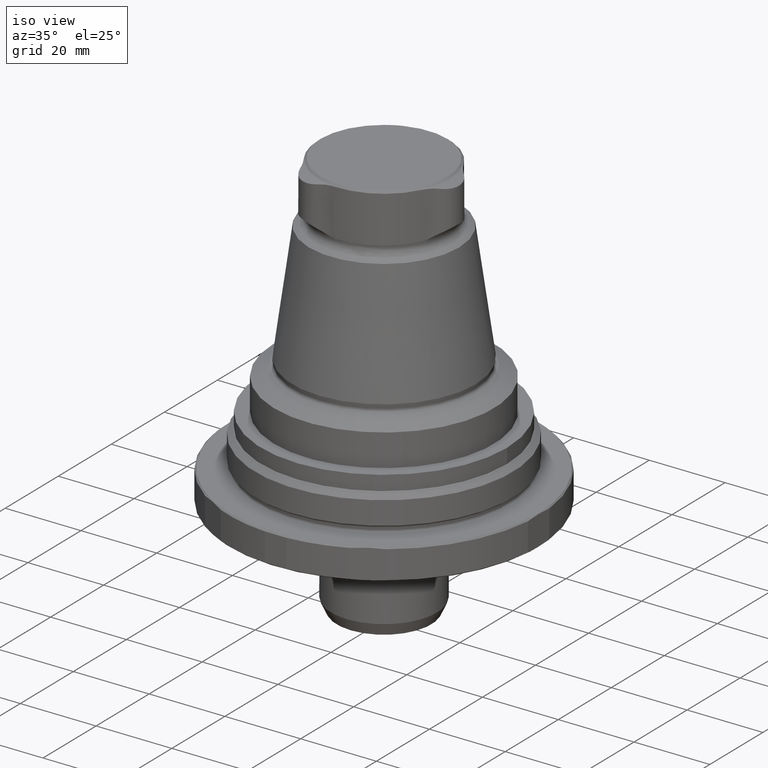
[diagram: clean part render]
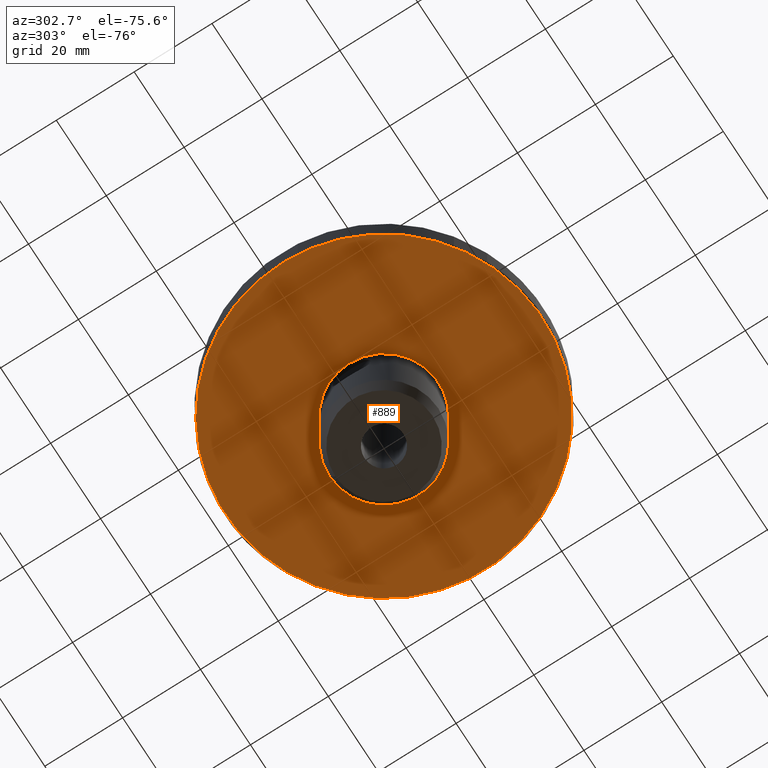
[diagram: tour spotlight — one face highlighted and labeled with its STEP entity id]
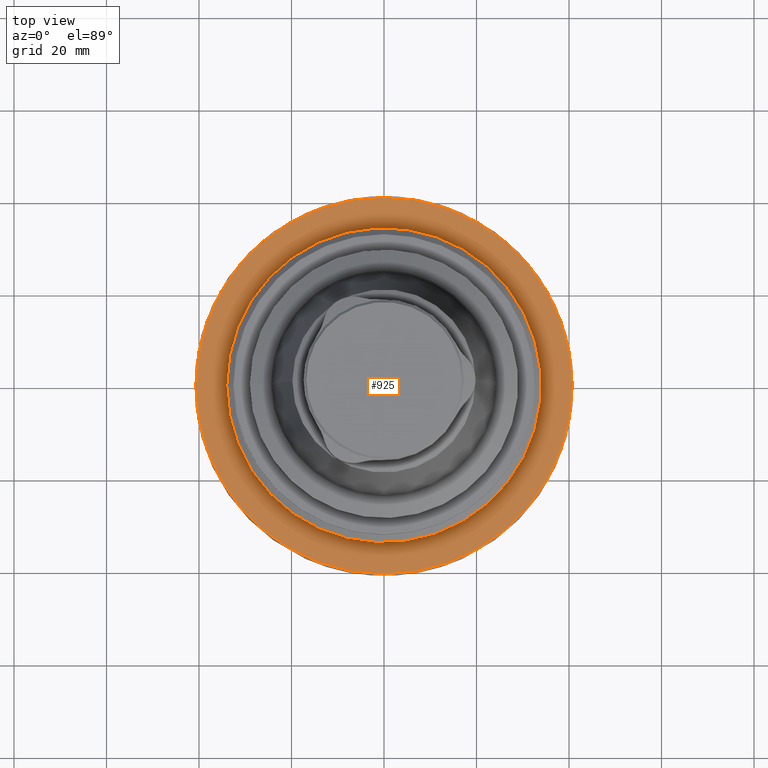
[diagram: tour spotlight — one face highlighted and labeled with its STEP entity id]
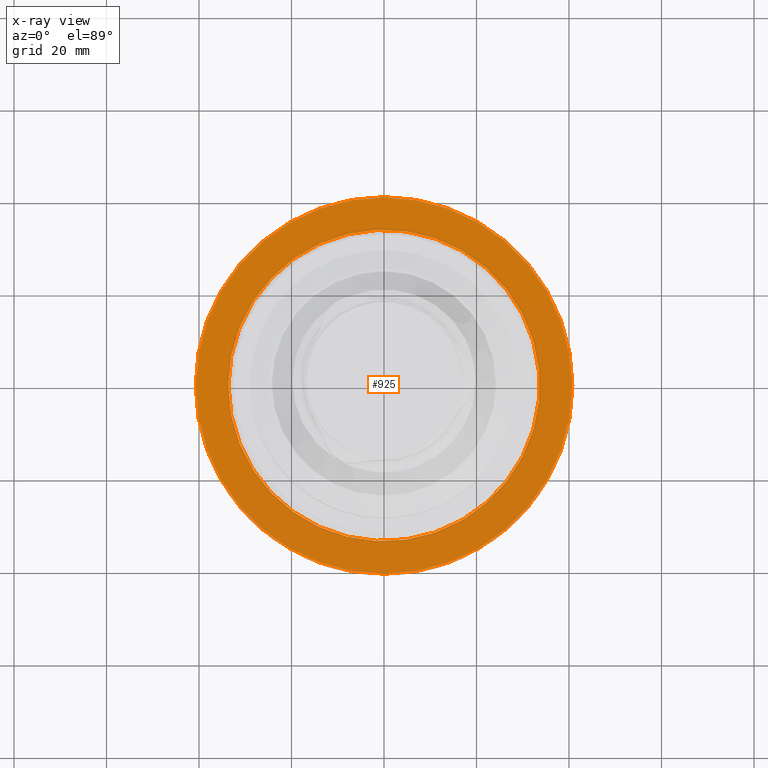
[diagram: x-ray of the same camera — body ghosted, this tour face saturated]
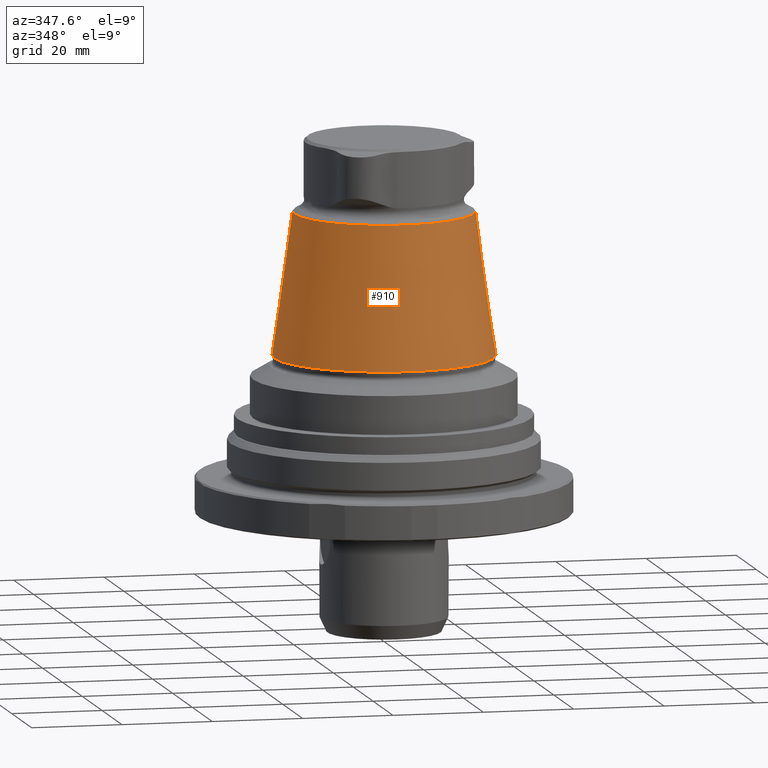
[diagram: tour spotlight — one face highlighted and labeled with its STEP entity id]
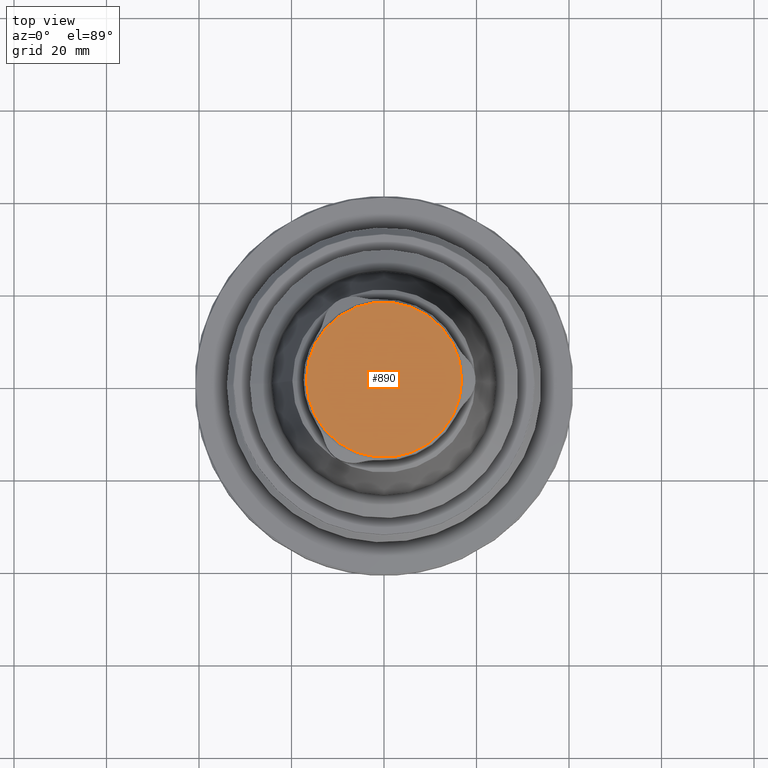
[diagram: tour spotlight — one face highlighted and labeled with its STEP entity id]
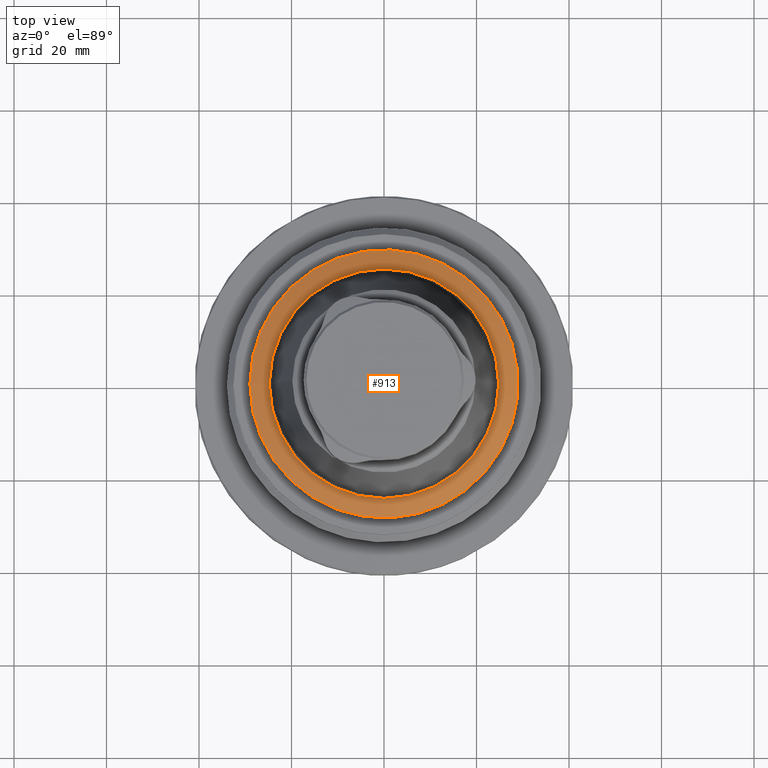
[diagram: tour spotlight — one face highlighted and labeled with its STEP entity id]
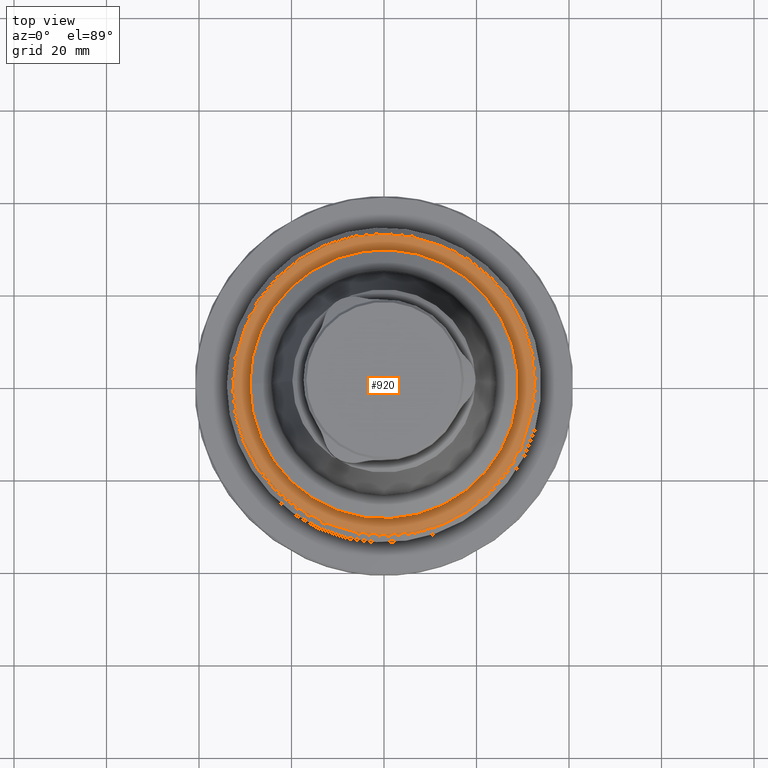
[diagram: tour spotlight — one face highlighted and labeled with its STEP entity id]
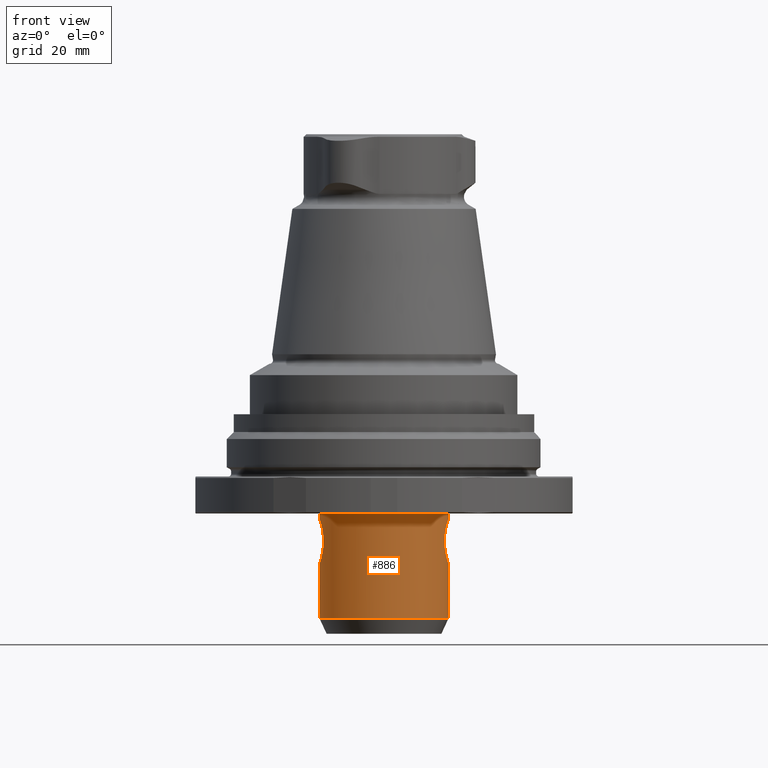
[diagram: tour spotlight — one face highlighted and labeled with its STEP entity id]
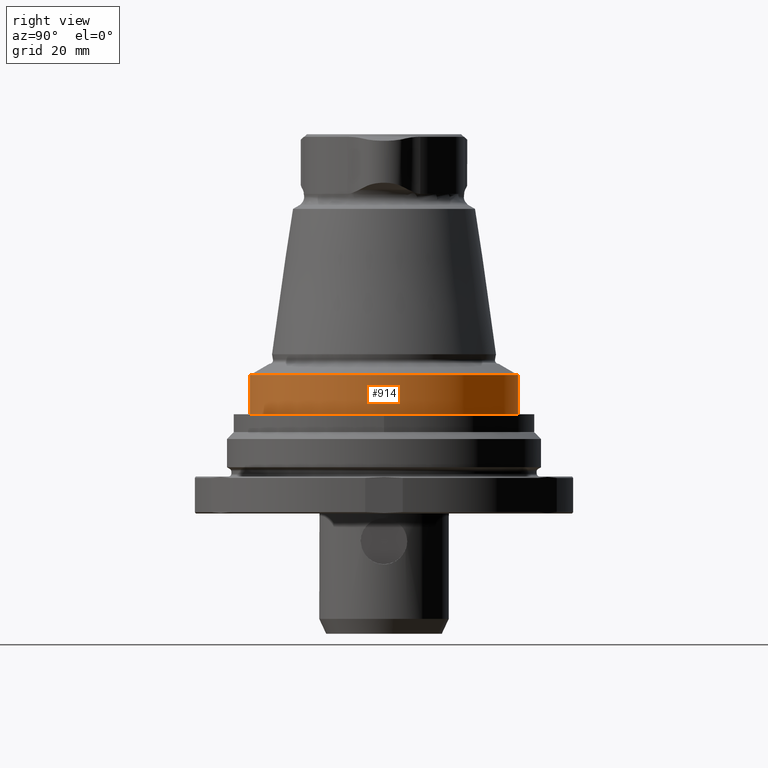
[diagram: tour spotlight — one face highlighted and labeled with its STEP entity id]
A machine part: a face-by-face anatomy tour. The part has 64 B-rep faces; the first image is the clean iso view, then the 8 largest visible faces are spotlighted one at a time (largest first), each with its STEP entity span.

Face 1 — auxiliary view, entity #889. In plain terms, the highlighted planar face has unit normal (0, -0, -1).
Definition (entity closure, byte-faithful):
#96=PLANE('',#970);
#112=CIRCLE('',#964,14.);
#116=CIRCLE('',#971,40.7);
#173=ORIENTED_EDGE('',*,*,#412,.F.);
#174=ORIENTED_EDGE('',*,*,#417,.T.);
#412=EDGE_CURVE('',#535,#535,#112,.T.);
#417=EDGE_CURVE('',#540,#540,#116,.T.);
#535=VERTEX_POINT('',#1367);
#540=VERTEX_POINT('',#1398);
#676=EDGE_LOOP('',(#173));
#677=EDGE_LOOP('',(#174));
#771=FACE_BOUND('',#676,.T.);
#772=FACE_BOUND('',#677,.T.);
#889=ADVANCED_FACE('',(#771,#772),#96,.T.);
#964=AXIS2_PLACEMENT_3D('',#1366,#1084,#1085);
#970=AXIS2_PLACEMENT_3D('',#1396,#1096,#1097);
#971=AXIS2_PLACEMENT_3D('',#1397,#1098,#1099);
#1084=DIRECTION('',(1.22461692971323E-16,-7.49836836562635E-33,-1.));
#1085=DIRECTION('',(-1.,0.,-1.22461692971323E-16));
#1096=DIRECTION('',(1.22461692971323E-16,-7.49836836562635E-33,-1.));
#1097=DIRECTION('',(-1.,6.12303176911189E-17,-1.22461692971323E-16));
#1098=DIRECTION('',(-7.30126435159279E-33,-9.52839055771651E-18,-1.));
#1099=DIRECTION('',(-1.,-8.32667268468868E-17,2.89465139560709E-33));
#1366=CARTESIAN_POINT('',(0.,0.,-9.));
#1367=CARTESIAN_POINT('',(-14.,0.,-9.));
#1396=CARTESIAN_POINT('',(-30.5,1.86752468957913E-15,-9.00000000000001));
#1397=CARTESIAN_POINT('',(7.88665112559661E-15,-1.67699673815811E-16,-9.00000000000001));
#1398=CARTESIAN_POINT('',(-40.7,-3.5566554564841E-15,-9.00000000000001));

Face 2 — top view, entity #925. An x-ray twin of the same camera follows (body ghosted, this face saturated) — the face is partly hidden behind the body. In plain terms, the highlighted planar face has unit normal (-0, -0, -1).
Definition (entity closure, byte-faithful):
#100=PLANE('',#1035);
#144=CIRCLE('',#1034,33.65);
#145=CIRCLE('',#1036,40.7);
#302=ORIENTED_EDGE('',*,*,#481,.T.);
#303=ORIENTED_EDGE('',*,*,#482,.F.);
#481=EDGE_CURVE('',#589,#589,#144,.T.);
#482=EDGE_CURVE('',#590,#590,#145,.T.);
#589=VERTEX_POINT('',#1642);
#590=VERTEX_POINT('',#1645);
#732=EDGE_LOOP('',(#302));
#733=EDGE_LOOP('',(#303));
#827=FACE_BOUND('',#732,.T.);
#828=FACE_BOUND('',#733,.T.);
#925=ADVANCED_FACE('',(#827,#828),#100,.F.);
#1034=AXIS2_PLACEMENT_3D('',#1641,#1236,#1237);
#1035=AXIS2_PLACEMENT_3D('',#1643,#1238,#1239);
#1036=AXIS2_PLACEMENT_3D('',#1644,#1240,#1241);
#1236=DIRECTION('',(-7.30126435159279E-33,-9.52839055771651E-18,-1.));
#1237=DIRECTION('',(-1.,-8.32667268468868E-17,2.89465139560709E-33));
#1238=DIRECTION('',(-7.30126435159279E-33,-9.52839055771651E-18,-1.));
#1239=DIRECTION('',(-1.,-8.32667268468868E-17,2.89465139560709E-33));
#1240=DIRECTION('',(-7.30126435159279E-33,-9.52839055771651E-18,-1.));
#1241=DIRECTION('',(-1.,-8.32667268468868E-17,2.89465139560709E-33));
#1641=CARTESIAN_POINT('',(7.88665112559661E-15,-9.1472549354079E-17,-1.00000000000001));
#1642=CARTESIAN_POINT('',(-33.65,-2.89339790775182E-15,-1.00000000000001));
#1643=CARTESIAN_POINT('',(-33.65,-2.89339790775182E-15,-1.00000000000001));
#1644=CARTESIAN_POINT('',(7.88665112559661E-15,-9.1472549354079E-17,-1.00000000000001));
#1645=CARTESIAN_POINT('',(-40.7,-3.48042833202237E-15,-1.00000000000001));

Face 3 — auxiliary view, entity #910. In plain terms, the highlighted conical surface has half-angle 7.95 deg.
Definition (entity closure, byte-faithful):
#88=CONICAL_SURFACE('',#1005,24.2110659529869,0.138753675533549);
#129=CIRCLE('',#1004,19.820622068747);
#130=CIRCLE('',#1006,24.2110659529869);
#272=ORIENTED_EDGE('',*,*,#466,.T.);
#273=ORIENTED_EDGE('',*,*,#467,.F.);
#466=EDGE_CURVE('',#574,#574,#129,.T.);
#467=EDGE_CURVE('',#575,#575,#130,.T.);
#574=VERTEX_POINT('',#1597);
#575=VERTEX_POINT('',#1600);
#702=EDGE_LOOP('',(#272));
#703=EDGE_LOOP('',(#273));
#797=FACE_BOUND('',#702,.T.);
#798=FACE_BOUND('',#703,.T.);
#910=ADVANCED_FACE('',(#797,#798),#88,.T.);
#1004=AXIS2_PLACEMENT_3D('',#1596,#1176,#1177);
#1005=AXIS2_PLACEMENT_3D('',#1598,#1178,#1179);
#1006=AXIS2_PLACEMENT_3D('',#1599,#1180,#1181);
#1176=DIRECTION('',(1.22461692971323E-16,-7.49836836562635E-33,-1.));
#1177=DIRECTION('',(-1.,6.12303176911189E-17,-1.22461692971323E-16));
#1178=DIRECTION('',(1.22461692971323E-16,-7.49836836562635E-33,-1.));
#1179=DIRECTION('',(-1.,6.12303176911189E-17,-1.22461692971323E-16));
#1180=DIRECTION('',(1.22461692971323E-16,-7.49836836562635E-33,-1.));
#1181=DIRECTION('',(-1.,6.12303176911189E-17,-1.22461692971323E-16));
#1596=CARTESIAN_POINT('',(1.97634923270405E-15,-1.21012491387068E-31,56.8624545642742));
#1597=CARTESIAN_POINT('',(-19.820622068747,1.21362298610498E-15,56.8624545642742));
#1598=CARTESIAN_POINT('',(5.82638272995627E-15,-3.56751265545271E-31,25.4237784865737));
#1599=CARTESIAN_POINT('',(5.82638272995627E-15,-3.56751265545271E-31,25.4237784865737));
#1600=CARTESIAN_POINT('',(-24.2110659529869,1.48245125994202E-15,25.4237784865737));

Face 4 — top view, entity #890. In plain terms, the highlighted planar face has unit normal (-0, 0, 1).
Definition (entity closure, byte-faithful):
#97=PLANE('',#972);
#117=CIRCLE('',#973,16.78);
#175=ORIENTED_EDGE('',*,*,#418,.F.);
#418=EDGE_CURVE('',#541,#541,#117,.T.);
#541=VERTEX_POINT('',#1401);
#678=EDGE_LOOP('',(#175));
#773=FACE_BOUND('',#678,.T.);
#890=ADVANCED_FACE('',(#773),#97,.T.);
#972=AXIS2_PLACEMENT_3D('',#1399,#1100,#1101);
#973=AXIS2_PLACEMENT_3D('',#1400,#1102,#1103);
#1100=DIRECTION('',(-1.22461692971323E-16,7.49836836562635E-33,1.));
#1101=DIRECTION('',(1.,-6.12303176911189E-17,1.22461692971323E-16));
#1102=DIRECTION('',(1.22461692971323E-16,-7.49836836562635E-33,-1.));
#1103=DIRECTION('',(-1.,6.12303176911189E-17,-1.22461692971323E-16));
#1399=CARTESIAN_POINT('',(-16.78,1.02744473085697E-15,73.));
#1400=CARTESIAN_POINT('',(1.18098243419732E-19,-7.23119296335328E-36,73.));
#1401=CARTESIAN_POINT('',(-16.78,1.02744473085697E-15,73.));

Face 5 — top view, entity #913. In plain terms, the highlighted conical surface has half-angle 60 deg.
Definition (entity closure, byte-faithful):
#90=CONICAL_SURFACE('',#1011,29.,1.0471975511966);
#132=CIRCLE('',#1010,24.8);
#133=CIRCLE('',#1012,29.);
#278=ORIENTED_EDGE('',*,*,#469,.T.);
#279=ORIENTED_EDGE('',*,*,#470,.F.);
#469=EDGE_CURVE('',#577,#577,#132,.T.);
#470=EDGE_CURVE('',#578,#578,#133,.T.);
#577=VERTEX_POINT('',#1606);
#578=VERTEX_POINT('',#1609);
#708=EDGE_LOOP('',(#278));
#709=EDGE_LOOP('',(#279));
#803=FACE_BOUND('',#708,.T.);
#804=FACE_BOUND('',#709,.T.);
#913=ADVANCED_FACE('',(#803,#804),#90,.T.);
#1010=AXIS2_PLACEMENT_3D('',#1605,#1188,#1189);
#1011=AXIS2_PLACEMENT_3D('',#1607,#1190,#1191);
#1012=AXIS2_PLACEMENT_3D('',#1608,#1192,#1193);
#1188=DIRECTION('',(1.22461692971323E-16,-7.49836836562635E-33,-1.));
#1189=DIRECTION('',(-1.,6.12303176911189E-17,-1.22461692971323E-16));
#1190=DIRECTION('',(1.22461692971323E-16,-7.49836836562635E-33,-1.));
#1191=DIRECTION('',(-1.,6.12303176911189E-17,-1.22461692971323E-16));
#1192=DIRECTION('',(1.22461692971323E-16,-7.49836836562635E-33,-1.));
#1193=DIRECTION('',(-1.,6.12303176911189E-17,-1.22461692971323E-16));
#1605=CARTESIAN_POINT('',(6.07951171463002E-15,-3.72250433693675E-31,23.3567730538379));
#1606=CARTESIAN_POINT('',(-24.8,1.51851187873975E-15,23.3567730538379));
#1607=CARTESIAN_POINT('',(6.37646553852014E-15,-3.9043301067006E-31,20.9319019232415));
#1608=CARTESIAN_POINT('',(6.37646553852014E-15,-3.9043301067006E-31,20.9319019232415));
#1609=CARTESIAN_POINT('',(-29.,1.77567921304245E-15,20.9319019232415));

Face 6 — top view, entity #920. In plain terms, the highlighted planar face has unit normal (0, -0, 1).
Definition (entity closure, byte-faithful):
#98=PLANE('',#1026);
#134=CIRCLE('',#1014,29.);
#141=CIRCLE('',#1027,32.48);
#292=ORIENTED_EDGE('',*,*,#478,.F.);
#293=ORIENTED_EDGE('',*,*,#471,.T.);
#471=EDGE_CURVE('',#579,#579,#134,.T.);
#478=EDGE_CURVE('',#586,#586,#141,.T.);
#579=VERTEX_POINT('',#1612);
#586=VERTEX_POINT('',#1632);
#722=EDGE_LOOP('',(#292));
#723=EDGE_LOOP('',(#293));
#817=FACE_BOUND('',#722,.T.);
#818=FACE_BOUND('',#723,.T.);
#920=ADVANCED_FACE('',(#817,#818),#98,.T.);
#1014=AXIS2_PLACEMENT_3D('',#1611,#1196,#1197);
#1026=AXIS2_PLACEMENT_3D('',#1630,#1220,#1221);
#1027=AXIS2_PLACEMENT_3D('',#1631,#1222,#1223);
#1196=DIRECTION('',(1.22461692971323E-16,-7.49836836562635E-33,-1.));
#1197=DIRECTION('',(-1.,6.12303176911189E-17,-1.22461692971323E-16));
#1220=DIRECTION('',(5.2112629750951E-18,-6.90472121537616E-17,1.));
#1221=DIRECTION('',(2.8327492261615E-16,1.,6.90472121537612E-17));
#1222=DIRECTION('',(-5.2112629750951E-18,6.90472121537616E-17,-1.));
#1223=DIRECTION('',(-1.,6.12303176911188E-17,1.08491142720197E-17));
#1611=CARTESIAN_POINT('',(7.4139489907273E-15,-4.53958452047983E-31,12.46));
#1612=CARTESIAN_POINT('',(-29.,1.77567921304245E-15,12.46));
#1630=CARTESIAN_POINT('',(7.41400110335705E-15,-9.52360330964904E-18,12.46));
#1631=CARTESIAN_POINT('',(7.41400110335705E-15,-9.52360330964904E-18,12.46));
#1632=CARTESIAN_POINT('',(-32.48,1.97923711529789E-15,12.46));

Face 7 — front view, entity #886. In plain terms, the highlighted cylindrical surface (bore or boss wall) has radius 14 mm, axis along (0, 0, -1).
Definition (entity closure, byte-faithful):
#112=CIRCLE('',#964,14.);
#113=CIRCLE('',#965,14.);
#165=ORIENTED_EDGE('',*,*,#411,.F.);
#166=ORIENTED_EDGE('',*,*,#412,.T.);
#167=ORIENTED_EDGE('',*,*,#413,.F.);
#168=ORIENTED_EDGE('',*,*,#414,.T.);
#411=EDGE_CURVE('',#534,#534,#626,.T.);
#412=EDGE_CURVE('',#535,#535,#112,.T.);
#413=EDGE_CURVE('',#536,#536,#113,.T.);
#414=EDGE_CURVE('',#537,#537,#627,.T.);
#534=VERTEX_POINT('',#1365);
#535=VERTEX_POINT('',#1367);
#536=VERTEX_POINT('',#1369);
#537=VERTEX_POINT('',#1389);
#626=B_SPLINE_CURVE_WITH_KNOTS('',3,(#1346,#1347,#1348,#1349,#1350,#1351,
#1352,#1353,#1354,#1355,#1356,#1357,#1358,#1359,#1360,#1361,#1362,#1363,
#1364),.UNSPECIFIED.,.T.,.F.,(1,1,1,1,1,1,1,1,1,1,1,1,1,1,1,1,1,1,1,1,1,
1,1),(-0.00591064977428052,-0.00394043318285368,-0.00197021659142684,9.63250120498706E-20,
0.00197021659142684,0.00394043318285368,0.00591064977428052,0.00788086636570735,
0.00985108295713419,0.011821299548561,0.0137915161399879,0.0157617327314147,
0.0177319493228415,0.0197021659142684,0.0216723825056952,0.0236425990971221,
0.0256128156885489,0.0275830322799757,0.0295532488714026,0.0315234654628294,
0.0334936820542562,0.0354638986456831,0.0374341152371099),.UNSPECIFIED.);
#627=B_SPLINE_CURVE_WITH_KNOTS('',3,(#1370,#1371,#1372,#1373,#1374,#1375,
#1376,#1377,#1378,#1379,#1380,#1381,#1382,#1383,#1384,#1385,#1386,#1387,
#1388),.UNSPECIFIED.,.T.,.F.,(1,1,1,1,1,1,1,1,1,1,1,1,1,1,1,1,1,1,1,1,1,
1,1),(-0.00591255785004649,-0.00394170523336433,-0.00197085261668217,2.17417444489596E-18,
0.00197085261668217,0.00394170523336433,0.00591255785004649,0.00788341046672866,
0.00985426308341082,0.011825115700093,0.0137959683167751,0.0157668209334573,
0.0177376735501395,0.0197085261668216,0.0216793787835038,0.023650231400186,
0.0256210840168681,0.0275919366335503,0.0295627892502325,0.0315336418669146,
0.0335044944835968,0.035475347100279,0.0374461997169611),.UNSPECIFIED.);
#668=EDGE_LOOP('',(#165));
#669=EDGE_LOOP('',(#166));
#670=EDGE_LOOP('',(#167));
#671=EDGE_LOOP('',(#168));
#763=FACE_BOUND('',#668,.T.);
#764=FACE_BOUND('',#669,.T.);
#765=FACE_BOUND('',#670,.T.);
#766=FACE_BOUND('',#671,.T.);
#858=CYLINDRICAL_SURFACE('',#963,14.);
#886=ADVANCED_FACE('',(#763,#764,#765,#766),#858,.T.);
#963=AXIS2_PLACEMENT_3D('',#1345,#1082,#1083);
#964=AXIS2_PLACEMENT_3D('',#1366,#1084,#1085);
#965=AXIS2_PLACEMENT_3D('',#1368,#1086,#1087);
#1082=DIRECTION('',(0.,0.,-1.));
#1083=DIRECTION('',(0.,1.,0.));
#1084=DIRECTION('',(1.22461692971323E-16,-7.49836836562635E-33,-1.));
#1085=DIRECTION('',(-1.,0.,-1.22461692971323E-16));
#1086=DIRECTION('',(0.,0.,-1.));
#1087=DIRECTION('',(0.,1.,0.));
#1345=CARTESIAN_POINT('',(0.,0.,-40.));
#1346=CARTESIAN_POINT('',(-13.9016067940891,1.9780088278235,-19.7334395421597));
#1347=CARTESIAN_POINT('',(-14.0492458083482,0.000571306782822661,-20.1334075804019));
#1348=CARTESIAN_POINT('',(-13.9014099725181,-1.98029405495479,-19.7329301362324));
#1349=CARTESIAN_POINT('',(-13.5475571024937,-3.62727419789173,-18.6232536988088));
#1350=CARTESIAN_POINT('',(-13.1833680980043,-4.73261003923754,-16.9784574040104));
#1351=CARTESIAN_POINT('',(-13.0235485037442,-5.13314891300659,-15.0048442313312));
#1352=CARTESIAN_POINT('',(-13.1826217866007,-4.73478668279837,-13.0235562337038));
#1353=CARTESIAN_POINT('',(-13.548429396924,-3.62461821742189,-11.3735303228159));
#1354=CARTESIAN_POINT('',(-13.9016243273572,-1.97741267902563,-10.2665881373442));
#1355=CARTESIAN_POINT('',(-14.0490763596538,-0.00236288828303346,-9.86704712450062));
#1356=CARTESIAN_POINT('',(-13.9020695155904,1.97587799297507,-10.2652253762779));
#1357=CARTESIAN_POINT('',(-13.5478572005137,3.62676307991624,-11.3753504630624));
#1358=CARTESIAN_POINT('',(-13.1827795572027,4.73420085089146,-13.024097791184));
#1359=CARTESIAN_POINT('',(-13.0235824015155,5.13308171600769,-15.000219574831));
#1360=CARTESIAN_POINT('',(-13.1830718803832,4.73347212837824,-16.9780901703716));
#1361=CARTESIAN_POINT('',(-13.5481115023847,3.62560151949914,-18.6252475256083));
#1362=CARTESIAN_POINT('',(-13.9016067940891,1.9780088278235,-19.7334395421597));
#1363=CARTESIAN_POINT('',(-14.0492458083482,0.000571306782822661,-20.1334075804019));
#1364=CARTESIAN_POINT('',(-13.9014099725181,-1.98029405495479,-19.7329301362324));
#1365=CARTESIAN_POINT('',(-14.,9.92347465156027E-17,-20.));
#1366=CARTESIAN_POINT('',(0.,0.,-9.));
#1367=CARTESIAN_POINT('',(-14.,0.,-9.));
#1368=CARTESIAN_POINT('',(0.,0.,-31.7832396192357));
#1369=CARTESIAN_POINT('',(0.,14.,-31.7832396192357));
#1370=CARTESIAN_POINT('',(13.9013973071411,1.97850262672377,-19.7322822751164));
#1371=CARTESIAN_POINT('',(14.0493451270721,0.000560364664881823,-20.1385415527119));
#1372=CARTESIAN_POINT('',(13.9012221845704,-1.98074408538329,-19.7318378430005));
#1373=CARTESIAN_POINT('',(13.5486287174456,-3.6224382027127,-18.6127917132535));
#1374=CARTESIAN_POINT('',(13.1862188250493,-4.72487166434861,-16.9660436896454));
#1375=CARTESIAN_POINT('',(13.0236584136169,-5.13287117698483,-14.994673568427));
#1376=CARTESIAN_POINT('',(13.1794697085431,-4.74327432786962,-13.0107581034366));
#1377=CARTESIAN_POINT('',(13.5469639786077,-3.63089458708451,-11.3598555520209));
#1378=CARTESIAN_POINT('',(13.9017232674596,-1.97795121661172,-10.2599858435305));
#1379=CARTESIAN_POINT('',(14.0490618503623,-0.00174885369781049,-9.86567577537829));
#1380=CARTESIAN_POINT('',(13.9020289694416,1.97715194759481,-10.2590257265981));
#1381=CARTESIAN_POINT('',(13.5463710524086,3.63304878932382,-11.3618242379878));
#1382=CARTESIAN_POINT('',(13.1796785797311,4.74255971867011,-13.0109094978334));
#1383=CARTESIAN_POINT('',(13.0236338299709,5.1329523013693,-14.9905941525814));
#1384=CARTESIAN_POINT('',(13.1860803422858,4.72533486563044,-16.9666580007764));
#1385=CARTESIAN_POINT('',(13.5493355631812,3.6201362021604,-18.6152942356559));
#1386=CARTESIAN_POINT('',(13.9013973071411,1.97850262672377,-19.7322822751164));
#1387=CARTESIAN_POINT('',(14.0493451270721,0.000560364664881823,-20.1385415527119));
#1388=CARTESIAN_POINT('',(13.9012221845704,-1.98074408538329,-19.7318378430005));
#1389=CARTESIAN_POINT('',(14.,1.76686331533685E-15,-20.0030477214941));

Face 8 — right view, entity #914. In plain terms, the highlighted cylindrical surface (bore or boss wall) has radius 29 mm, axis along (0, -0, -1).
Definition (entity closure, byte-faithful):
#133=CIRCLE('',#1012,29.);
#134=CIRCLE('',#1014,29.);
#280=ORIENTED_EDGE('',*,*,#470,.T.);
#281=ORIENTED_EDGE('',*,*,#471,.F.);
#470=EDGE_CURVE('',#578,#578,#133,.T.);
#471=EDGE_CURVE('',#579,#579,#134,.T.);
#578=VERTEX_POINT('',#1609);
#579=VERTEX_POINT('',#1612);
#710=EDGE_LOOP('',(#280));
#711=EDGE_LOOP('',(#281));
#805=FACE_BOUND('',#710,.T.);
#806=FACE_BOUND('',#711,.T.);
#871=CYLINDRICAL_SURFACE('',#1013,29.);
#914=ADVANCED_FACE('',(#805,#806),#871,.T.);
#1012=AXIS2_PLACEMENT_3D('',#1608,#1192,#1193);
#1013=AXIS2_PLACEMENT_3D('',#1610,#1194,#1195);
#1014=AXIS2_PLACEMENT_3D('',#1611,#1196,#1197);
#1192=DIRECTION('',(1.22461692971323E-16,-7.49836836562635E-33,-1.));
#1193=DIRECTION('',(-1.,6.12303176911189E-17,-1.22461692971323E-16));
#1194=DIRECTION('',(1.22461692971323E-16,-7.49836836562635E-33,-1.));
#1195=DIRECTION('',(-1.,6.12303176911189E-17,-1.22461692971323E-16));
#1196=DIRECTION('',(1.22461692971323E-16,-7.49836836562635E-33,-1.));
#1197=DIRECTION('',(-1.,6.12303176911189E-17,-1.22461692971323E-16));
#1608=CARTESIAN_POINT('',(6.37646553852014E-15,-3.9043301067006E-31,20.9319019232415));
#1609=CARTESIAN_POINT('',(-29.,1.77567921304245E-15,20.9319019232415));
#1610=CARTESIAN_POINT('',(0.,0.,73.0009643688614));
#1611=CARTESIAN_POINT('',(7.4139489907273E-15,-4.53958452047983E-31,12.46));
#1612=CARTESIAN_POINT('',(-29.,1.77567921304245E-15,12.46));